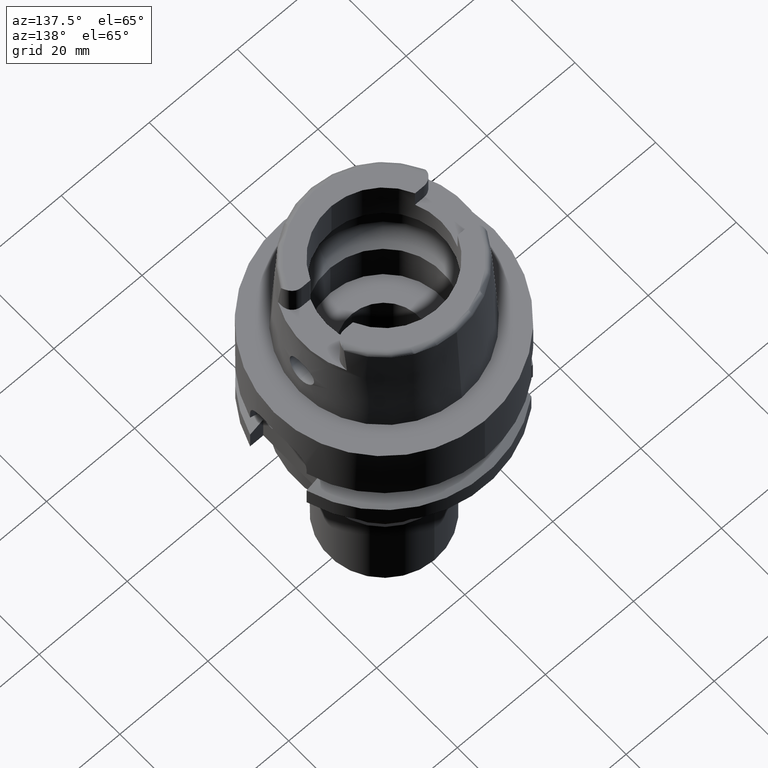
[diagram: clean part render]
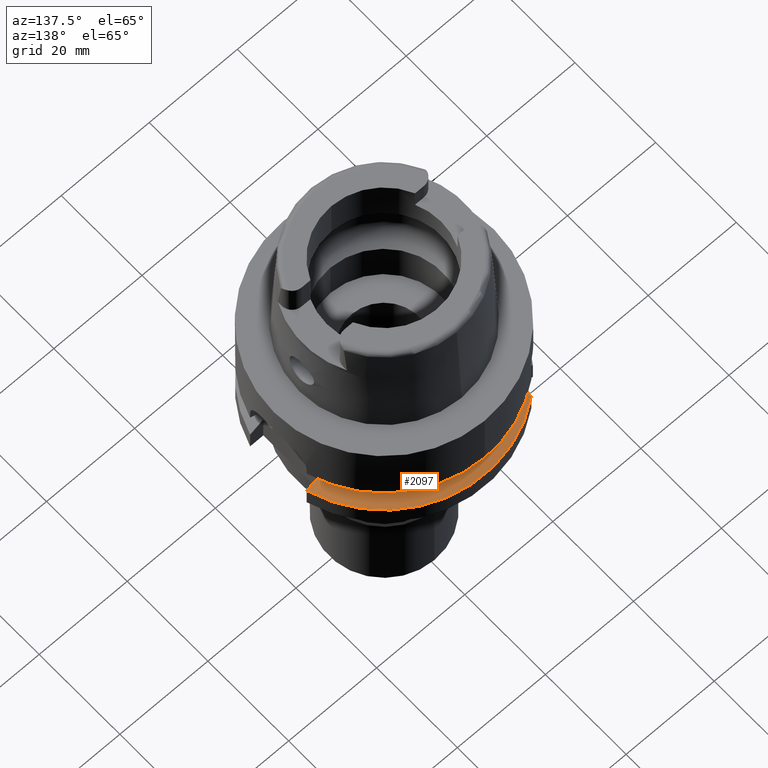
[diagram: same view with one face highlighted and labeled with its STEP entity id]
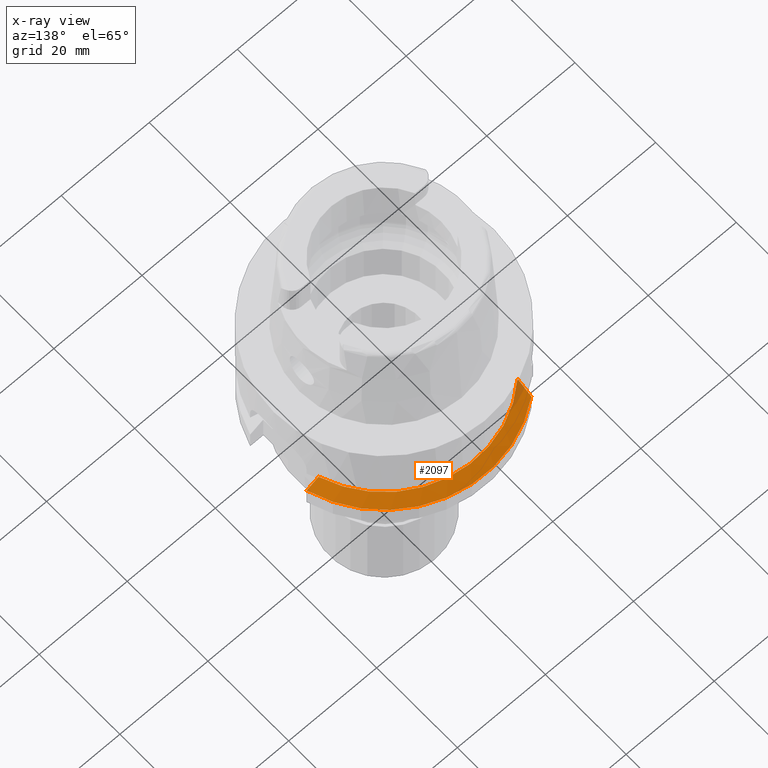
[diagram: x-ray of the same camera — body ghosted, the highlighted face saturated]
A machine part, auxiliary view. The second image highlights one B-rep face of the part: STEP entity #2097.
The next image is the same camera in x-ray: the body ghosted, the highlighted face saturated — about 3% of this face is hidden behind the body in this view.
In plain terms, the highlighted conical surface has half-angle 60 deg.
Its self-contained STEP definition (entity closure, byte-faithful):
#79 = VERTEX_POINT ( 'NONE', #4090 ) ;
#84 = CARTESIAN_POINT ( 'NONE',  ( -15.50001397709000095, 19.61503420108000029, -21.37755022036999719 ) ) ;
#792 = CARTESIAN_POINT ( 'NONE',  ( 0.0000000000000000000, 0.0000000000000000000, -21.37749907476000288 ) ) ;
#879 = CIRCLE ( 'NONE', #2833, 24.99999999999999645 ) ;
#887 = ORIENTED_EDGE ( 'NONE', *, *, #3786, .F. ) ;
#962 = CIRCLE ( 'NONE', #4786, 22.39759526418999869 ) ;
#994 = DIRECTION ( 'NONE',  ( 0.0000000000000000000, 0.0000000000000000000, -1.000000000000000000 ) ) ;
#1040 = ORIENTED_EDGE ( 'NONE', *, *, #4792, .T. ) ;
#1085 = CARTESIAN_POINT ( 'NONE',  ( 23.99999968290999774, 7.000001087171000336, -21.37750801860000038 ) ) ;
#1186 = VERTEX_POINT ( 'NONE', #3503 ) ;
#2097 = ADVANCED_FACE ( 'NONE', ( #2933 ), #4692, .T. ) ;
#2171 = EDGE_CURVE ( 'NONE', #2838, #79, #4926, .T. ) ;
#2386 = CARTESIAN_POINT ( 'NONE',  ( -15.49998696071000026, 16.16805732865999801, -19.87500000000000000 ) ) ;
#2387 = ORIENTED_EDGE ( 'NONE', *, *, #2171, .T. ) ;
#2450 = DIRECTION ( 'NONE',  ( 0.0000000000000000000, -1.000000000000000000, 0.0000000000000000000 ) ) ;
#2494 = DIRECTION ( 'NONE',  ( 0.0000000000000000000, 0.0000000000000000000, -1.000000000000000000 ) ) ;
#2513 = CARTESIAN_POINT ( 'NONE',  ( 0.0000000000000000000, 0.0000000000000000000, -20.62624953738000144 ) ) ;
#2833 = AXIS2_PLACEMENT_3D ( 'NONE', #792, #2494, #2944 ) ;
#2838 = VERTEX_POINT ( 'NONE', #3836 ) ;
#2933 = FACE_OUTER_BOUND ( 'NONE', #5335, .T. ) ;
#2944 = DIRECTION ( 'NONE',  ( -0.6200000000000721601, 0.7846018098372642413, 0.0000000000000000000 ) ) ;
#3230 = CARTESIAN_POINT ( 'NONE',  ( 21.27562140232999965, 7.000000352930999981, -19.87500000000000000 ) ) ;
#3252 = CARTESIAN_POINT ( 'NONE',  ( 23.04351310858757529, 7.000002173253808913, -20.84736058742170428 ) ) ;
#3317 = DIRECTION ( 'NONE',  ( 0.0000000000000000000, 0.0000000000000000000, -1.000000000000000000 ) ) ;
#3503 = CARTESIAN_POINT ( 'NONE',  ( -15.50001397709000095, 19.61503420108000029, -21.37755022036999719 ) ) ;
#3566 = CARTESIAN_POINT ( 'NONE',  ( 22.13540235805630019, 7.000000707051883708, -20.34652616429885441 ) ) ;
#3786 = EDGE_CURVE ( 'NONE', #1186, #79, #879, .T. ) ;
#3803 = B_SPLINE_CURVE_WITH_KNOTS ( 'NONE', 3,
 ( #4779, #5276, #4391, #84 ),
 .UNSPECIFIED., .F., .F.,
 ( 4, 4 ),
 ( 0.0000000000000000000, 1.000000000000000000 ),
 .UNSPECIFIED. ) ;
#3836 = CARTESIAN_POINT ( 'NONE',  ( 21.27562140232999965, 7.000000352930999981, -19.87500000000000000 ) ) ;
#4090 = CARTESIAN_POINT ( 'NONE',  ( 23.99999968290999774, 7.000001087171000336, -21.37750801860000038 ) ) ;
#4246 = AXIS2_PLACEMENT_3D ( 'NONE', #2513, #3317, #2450 ) ;
#4391 = CARTESIAN_POINT ( 'NONE',  ( -15.50000000000000000, 18.40098518140533201, -20.82759900369239858 ) ) ;
#4692 = CONICAL_SURFACE ( 'NONE', #4246, 23.69879763209999979, 1.047197551196400456 ) ;
#4751 = ORIENTED_EDGE ( 'NONE', *, *, #4811, .F. ) ;
#4752 = DIRECTION ( 'NONE',  ( 0.0000000000000000000, 1.000000000000000000, 0.0000000000000000000 ) ) ;
#4779 = CARTESIAN_POINT ( 'NONE',  ( -15.49998696071000026, 16.16805732865999801, -19.87500000000000000 ) ) ;
#4786 = AXIS2_PLACEMENT_3D ( 'NONE', #4808, #994, #4752 ) ;
#4792 = EDGE_CURVE ( 'NONE', #5024, #2838, #962, .T. ) ;
#4808 = CARTESIAN_POINT ( 'NONE',  ( 0.0000000000000000000, 0.0000000000000000000, -19.87500000000000000 ) ) ;
#4811 = EDGE_CURVE ( 'NONE', #5024, #1186, #3803, .T. ) ;
#4926 = B_SPLINE_CURVE_WITH_KNOTS ( 'NONE', 3,
 ( #3230, #3566, #3252, #1085 ),
 .UNSPECIFIED., .F., .F.,
 ( 4, 4 ),
 ( 0.0000000000000000000, 1.000000000000000000 ),
 .UNSPECIFIED. ) ;
#5024 = VERTEX_POINT ( 'NONE', #2386 ) ;
#5276 = CARTESIAN_POINT ( 'NONE',  ( -15.50000000000000000, 17.25199289059866459, -20.32674893023573404 ) ) ;
#5335 = EDGE_LOOP ( 'NONE', ( #4751, #1040, #2387, #887 ) ) ;